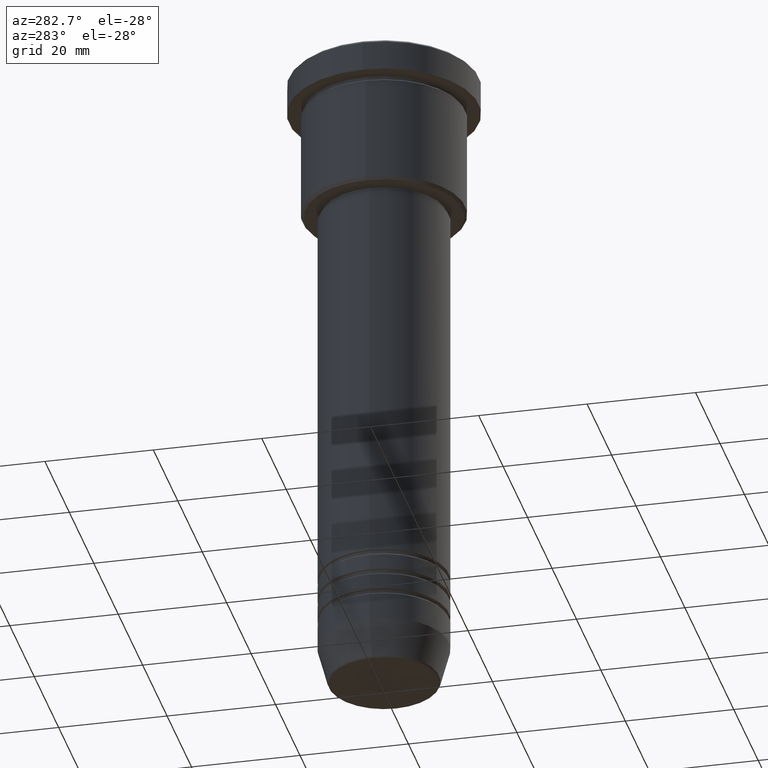
[diagram: clean part render]
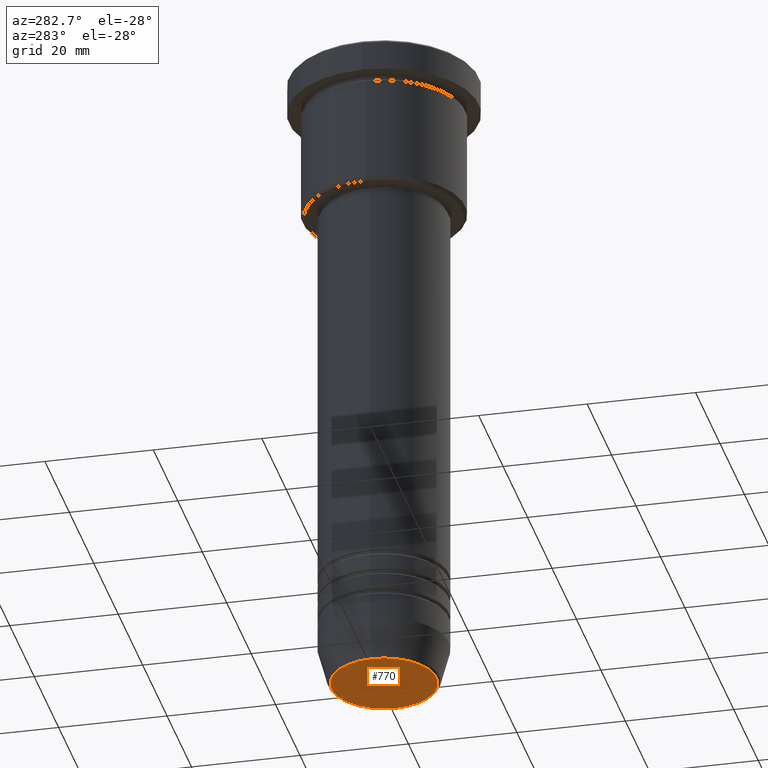
[diagram: same view with one face highlighted and labeled with its STEP entity id]
A machine part, auxiliary view. The second image highlights one B-rep face of the part: STEP entity #770.
In plain terms, the highlighted planar face has unit normal (0, -0, 1).
Its self-contained STEP definition (entity closure, byte-faithful):
#8 = CARTESIAN_POINT ( 'NONE',  ( 0.000000000000000000, 0.000000000000000000, -122.0000000000000000 ) ) ;
#73 = CARTESIAN_POINT ( 'NONE',  ( 9.740692158992658278, 0.000000000000000000, -122.0000000000000000 ) ) ;
#161 = DIRECTION ( 'NONE',  ( 0.000000000000000000, 0.000000000000000000, -1.000000000000000000 ) ) ;
#174 = DIRECTION ( 'NONE',  ( 0.000000000000000000, -0.000000000000000000, 1.000000000000000000 ) ) ;
#178 = CARTESIAN_POINT ( 'NONE',  ( 0.000000000000000000, 0.000000000000000000, -122.0000000000000000 ) ) ;
#258 = CIRCLE ( 'NONE', #538, 9.740692158992658278 ) ;
#268 = CARTESIAN_POINT ( 'NONE',  ( 0.000000000000000000, 0.000000000000000000, -122.0000000000000000 ) ) ;
#271 = DIRECTION ( 'NONE',  ( 1.000000000000000000, 0.000000000000000000, 0.000000000000000000 ) ) ;
#326 = VERTEX_POINT ( 'NONE', #73 ) ;
#329 = VERTEX_POINT ( 'NONE', #892 ) ;
#343 = FACE_OUTER_BOUND ( 'NONE', #1027, .T. ) ;
#538 = AXIS2_PLACEMENT_3D ( 'NONE', #178, #161, #1158 ) ;
#625 = ORIENTED_EDGE ( 'NONE', *, *, #672, .T. ) ;
#672 = EDGE_CURVE ( 'NONE', #329, #326, #957, .T. ) ;
#731 = DIRECTION ( 'NONE',  ( 1.000000000000000000, 0.000000000000000000, 0.000000000000000000 ) ) ;
#770 = ADVANCED_FACE ( 'NONE', ( #343 ), #1081, .F. ) ;
#888 = ORIENTED_EDGE ( 'NONE', *, *, #1132, .T. ) ;
#892 = CARTESIAN_POINT ( 'NONE',  ( -9.740692158992658278, 1.222463696683474604E-15, -122.0000000000000000 ) ) ;
#939 = AXIS2_PLACEMENT_3D ( 'NONE', #8, #994, #731 ) ;
#957 = CIRCLE ( 'NONE', #939, 9.740692158992658278 ) ;
#994 = DIRECTION ( 'NONE',  ( 0.000000000000000000, 0.000000000000000000, -1.000000000000000000 ) ) ;
#1027 = EDGE_LOOP ( 'NONE', ( #888, #625 ) ) ;
#1033 = AXIS2_PLACEMENT_3D ( 'NONE', #268, #174, #271 ) ;
#1081 = PLANE ( 'NONE',  #1033 ) ;
#1132 = EDGE_CURVE ( 'NONE', #326, #329, #258, .T. ) ;
#1158 = DIRECTION ( 'NONE',  ( 1.000000000000000000, 0.000000000000000000, 0.000000000000000000 ) ) ;